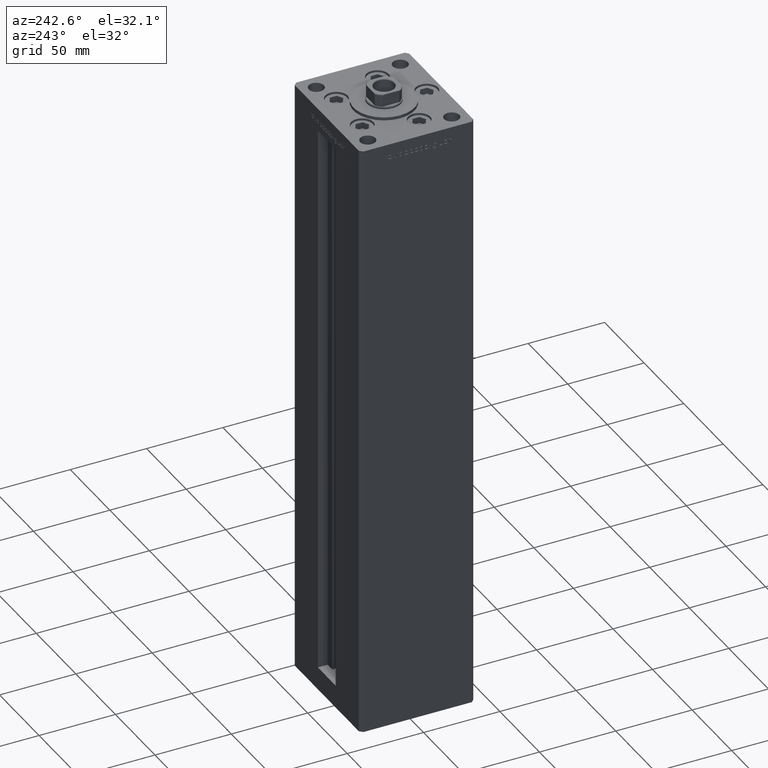
[diagram: clean part render]
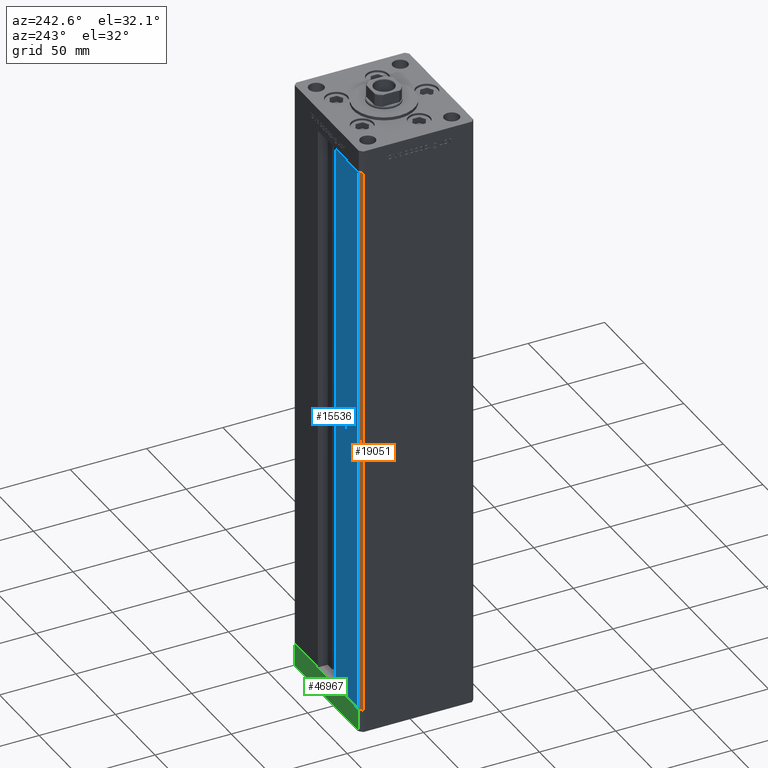
[diagram: same view with three faces highlighted in distinct colors, each labeled with its STEP entity id]
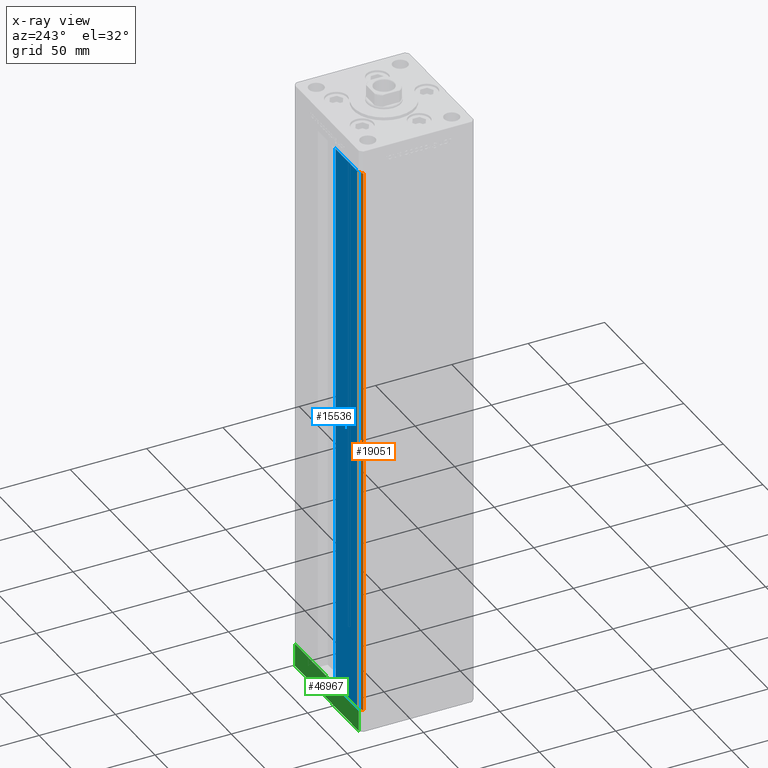
[diagram: x-ray of the same camera — body ghosted, the three highlighted faces saturated]
A machine part, auxiliary view with three faces highlighted in distinct colors.
The next image is the same camera in x-ray (body ghosted, the three faces saturated) — at least one of them is partly hidden behind the body in this view.
Their STEP definitions:

[orange] entity #19051 — the highlighted planar face has unit normal (0.7071, -0.7071, 0).
#3015 = DIRECTION ( 'NONE',  ( 0.7071067811865499042, 0.7071067811865451302, 0.000000000000000000 ) ) ;
#3270 = DIRECTION ( 'NONE',  ( 0.7071067811865451302, -0.7071067811865499042, 0.000000000000000000 ) ) ;
#3751 = EDGE_CURVE ( 'NONE', #9696, #46695, #30441, .T. ) ;
#4686 = EDGE_LOOP ( 'NONE', ( #36481, #6813, #23382, #20556 ) ) ;
#6538 = CARTESIAN_POINT ( 'NONE',  ( -42.50000000000000711, 35.50000000000001421, 0.000000000000000000 ) ) ;
#6813 = ORIENTED_EDGE ( 'NONE', *, *, #37438, .F. ) ;
#7782 = AXIS2_PLACEMENT_3D ( 'NONE', #43585, #3270, #3015 ) ;
#8089 = DIRECTION ( 'NONE',  ( -0.000000000000000000, -0.000000000000000000, -1.000000000000000000 ) ) ;
#9696 = VERTEX_POINT ( 'NONE', #22670 ) ;
#15595 = EDGE_CURVE ( 'NONE', #23734, #32940, #25820, .T. ) ;
#16400 = LINE ( 'NONE', #27689, #25405 ) ;
#18212 = DIRECTION ( 'NONE',  ( -0.7071067811865500152, -0.7071067811865451302, 0.000000000000000000 ) ) ;
#19051 = ADVANCED_FACE ( 'NONE', ( #27125 ), #50695, .F. ) ;
#20556 = ORIENTED_EDGE ( 'NONE', *, *, #33806, .T. ) ;
#22670 = CARTESIAN_POINT ( 'NONE',  ( -40.50000000000000000, 37.50000000000000711, 0.000000000000000000 ) ) ;
#23053 = CARTESIAN_POINT ( 'NONE',  ( -40.50000000000000000, 37.50000000000000711, 368.5000000000000000 ) ) ;
#23382 = ORIENTED_EDGE ( 'NONE', *, *, #15595, .F. ) ;
#23621 = CARTESIAN_POINT ( 'NONE',  ( -40.50000000000000000, 37.50000000000000711, 368.5000000000000000 ) ) ;
#23734 = VERTEX_POINT ( 'NONE', #23621 ) ;
#24083 = VECTOR ( 'NONE', #26509, 1000.000000000000114 ) ;
#25405 = VECTOR ( 'NONE', #48341, 1000.000000000000000 ) ;
#25820 = LINE ( 'NONE', #34731, #26097 ) ;
#26097 = VECTOR ( 'NONE', #18212, 1000.000000000000114 ) ;
#26509 = DIRECTION ( 'NONE',  ( -0.7071067811865500152, -0.7071067811865451302, 0.000000000000000000 ) ) ;
#27125 = FACE_OUTER_BOUND ( 'NONE', #4686, .T. ) ;
#27689 = CARTESIAN_POINT ( 'NONE',  ( -42.50000000000000711, 35.50000000000001421, 368.5000000000000000 ) ) ;
#30373 = VECTOR ( 'NONE', #8089, 1000.000000000000000 ) ;
#30441 = LINE ( 'NONE', #46395, #24083 ) ;
#32940 = VERTEX_POINT ( 'NONE', #38203 ) ;
#33806 = EDGE_CURVE ( 'NONE', #23734, #9696, #34874, .T. ) ;
#34731 = CARTESIAN_POINT ( 'NONE',  ( -40.50000000000000000, 37.50000000000000711, 368.5000000000000000 ) ) ;
#34874 = LINE ( 'NONE', #23053, #30373 ) ;
#36481 = ORIENTED_EDGE ( 'NONE', *, *, #3751, .T. ) ;
#37438 = EDGE_CURVE ( 'NONE', #32940, #46695, #16400, .T. ) ;
#38203 = CARTESIAN_POINT ( 'NONE',  ( -42.50000000000000711, 35.50000000000001421, 368.5000000000000000 ) ) ;
#43585 = CARTESIAN_POINT ( 'NONE',  ( -40.50000000000000000, 37.50000000000000711, 368.5000000000000000 ) ) ;
#46395 = CARTESIAN_POINT ( 'NONE',  ( -40.50000000000000000, 37.50000000000000711, 0.000000000000000000 ) ) ;
#46695 = VERTEX_POINT ( 'NONE', #6538 ) ;
#48341 = DIRECTION ( 'NONE',  ( -0.000000000000000000, -0.000000000000000000, -1.000000000000000000 ) ) ;
#50695 = PLANE ( 'NONE',  #7782 ) ;

[blue] entity #15536 — the highlighted planar face has unit normal (-0, -1, 0).
#8089 = DIRECTION ( 'NONE',  ( -0.000000000000000000, -0.000000000000000000, -1.000000000000000000 ) ) ;
#8780 = DIRECTION ( 'NONE',  ( -2.372271420139223331E-16, -1.000000000000000000, 0.000000000000000000 ) ) ;
#9460 = EDGE_LOOP ( 'NONE', ( #16716, #39993, #22182, #12212 ) ) ;
#9568 = CARTESIAN_POINT ( 'NONE',  ( -11.25000000000000000, 37.50000000000000000, 0.000000000000000000 ) ) ;
#9696 = VERTEX_POINT ( 'NONE', #22670 ) ;
#10795 = CARTESIAN_POINT ( 'NONE',  ( -11.25000000000000000, 37.50000000000000000, 0.000000000000000000 ) ) ;
#11838 = EDGE_CURVE ( 'NONE', #14102, #9696, #33281, .T. ) ;
#12212 = ORIENTED_EDGE ( 'NONE', *, *, #33806, .F. ) ;
#12715 = FACE_OUTER_BOUND ( 'NONE', #9460, .T. ) ;
#14102 = VERTEX_POINT ( 'NONE', #10795 ) ;
#15536 = ADVANCED_FACE ( 'NONE', ( #12715 ), #16649, .F. ) ;
#16649 = PLANE ( 'NONE',  #36100 ) ;
#16716 = ORIENTED_EDGE ( 'NONE', *, *, #20007, .T. ) ;
#20007 = EDGE_CURVE ( 'NONE', #23734, #27843, #47531, .T. ) ;
#21097 = LINE ( 'NONE', #9568, #40421 ) ;
#22182 = ORIENTED_EDGE ( 'NONE', *, *, #11838, .T. ) ;
#22670 = CARTESIAN_POINT ( 'NONE',  ( -40.50000000000000000, 37.50000000000000711, 0.000000000000000000 ) ) ;
#23053 = CARTESIAN_POINT ( 'NONE',  ( -40.50000000000000000, 37.50000000000000711, 368.5000000000000000 ) ) ;
#23621 = CARTESIAN_POINT ( 'NONE',  ( -40.50000000000000000, 37.50000000000000711, 368.5000000000000000 ) ) ;
#23734 = VERTEX_POINT ( 'NONE', #23621 ) ;
#25019 = DIRECTION ( 'NONE',  ( 1.000000000000000000, -2.372271420139223331E-16, 0.000000000000000000 ) ) ;
#27135 = DIRECTION ( 'NONE',  ( 1.000000000000000000, 0.000000000000000000, 0.000000000000000000 ) ) ;
#27843 = VERTEX_POINT ( 'NONE', #49486 ) ;
#30373 = VECTOR ( 'NONE', #8089, 1000.000000000000000 ) ;
#32911 = DIRECTION ( 'NONE',  ( -0.000000000000000000, -0.000000000000000000, 1.000000000000000000 ) ) ;
#33281 = LINE ( 'NONE', #49480, #39359 ) ;
#33806 = EDGE_CURVE ( 'NONE', #23734, #9696, #34874, .T. ) ;
#34874 = LINE ( 'NONE', #23053, #30373 ) ;
#36100 = AXIS2_PLACEMENT_3D ( 'NONE', #36308, #8780, #25019 ) ;
#36308 = CARTESIAN_POINT ( 'NONE',  ( -11.25000000000000000, 37.50000000000000000, 368.5000000000000000 ) ) ;
#36636 = EDGE_CURVE ( 'NONE', #14102, #27843, #21097, .T. ) ;
#39359 = VECTOR ( 'NONE', #48960, 1000.000000000000000 ) ;
#39677 = CARTESIAN_POINT ( 'NONE',  ( -11.25000000000000000, 37.50000000000000000, 368.5000000000000000 ) ) ;
#39993 = ORIENTED_EDGE ( 'NONE', *, *, #36636, .F. ) ;
#40421 = VECTOR ( 'NONE', #32911, 1000.000000000000000 ) ;
#43746 = VECTOR ( 'NONE', #27135, 1000.000000000000000 ) ;
#47531 = LINE ( 'NONE', #39677, #43746 ) ;
#48960 = DIRECTION ( 'NONE',  ( -1.000000000000000000, 2.372271420139223331E-16, 0.000000000000000000 ) ) ;
#49480 = CARTESIAN_POINT ( 'NONE',  ( -11.25000000000000000, 37.50000000000000000, 0.000000000000000000 ) ) ;
#49486 = CARTESIAN_POINT ( 'NONE',  ( -11.25000000000000000, 37.50000000000000000, 368.5000000000000000 ) ) ;

[green] entity #46967 — the highlighted planar face has unit normal (0, 1, 0).
#327 = VECTOR ( 'NONE', #9192, 1000.000000000000000 ) ;
#2859 = CARTESIAN_POINT ( 'NONE',  ( -40.50000000000000711, 37.49999999999997868, -15.00000000000000000 ) ) ;
#4214 = DIRECTION ( 'NONE',  ( -1.000000000000000000, -3.426614273534436165E-16, 0.000000000000000000 ) ) ;
#4740 = CARTESIAN_POINT ( 'NONE',  ( 40.49999999999991473, 37.50000000000000711, 0.000000000000000000 ) ) ;
#8404 = CARTESIAN_POINT ( 'NONE',  ( 40.49999999999991473, 37.50000000000000711, -15.00000000000000000 ) ) ;
#9192 = DIRECTION ( 'NONE',  ( -1.000000000000000000, -3.426614273534436165E-16, 0.000000000000000000 ) ) ;
#12967 = VERTEX_POINT ( 'NONE', #46529 ) ;
#13025 = VECTOR ( 'NONE', #4214, 1000.000000000000000 ) ;
#15247 = LINE ( 'NONE', #8404, #13025 ) ;
#15347 = ORIENTED_EDGE ( 'NONE', *, *, #38253, .F. ) ;
#16464 = ORIENTED_EDGE ( 'NONE', *, *, #27991, .T. ) ;
#17981 = CARTESIAN_POINT ( 'NONE',  ( 40.49999999999991473, 37.50000000000000711, 0.000000000000000000 ) ) ;
#18585 = LINE ( 'NONE', #2859, #42991 ) ;
#18870 = AXIS2_PLACEMENT_3D ( 'NONE', #22896, #50917, #51422 ) ;
#19901 = VERTEX_POINT ( 'NONE', #17981 ) ;
#21115 = EDGE_LOOP ( 'NONE', ( #15347, #41817, #36189, #16464 ) ) ;
#22896 = CARTESIAN_POINT ( 'NONE',  ( 40.49999999999991473, 37.50000000000000711, -15.00000000000000000 ) ) ;
#23654 = PLANE ( 'NONE',  #18870 ) ;
#25473 = VECTOR ( 'NONE', #38225, 1000.000000000000000 ) ;
#27991 = EDGE_CURVE ( 'NONE', #43932, #37492, #18585, .T. ) ;
#29511 = CARTESIAN_POINT ( 'NONE',  ( -40.50000000000000711, 37.49999999999997868, 0.000000000000000000 ) ) ;
#30041 = EDGE_CURVE ( 'NONE', #12967, #19901, #33783, .T. ) ;
#33783 = LINE ( 'NONE', #41333, #25473 ) ;
#35729 = FACE_OUTER_BOUND ( 'NONE', #21115, .T. ) ;
#36189 = ORIENTED_EDGE ( 'NONE', *, *, #48133, .T. ) ;
#37492 = VERTEX_POINT ( 'NONE', #29511 ) ;
#38187 = CARTESIAN_POINT ( 'NONE',  ( -40.50000000000000711, 37.49999999999997868, -15.00000000000000000 ) ) ;
#38225 = DIRECTION ( 'NONE',  ( 0.000000000000000000, 0.000000000000000000, 1.000000000000000000 ) ) ;
#38253 = EDGE_CURVE ( 'NONE', #19901, #37492, #40627, .T. ) ;
#40627 = LINE ( 'NONE', #4740, #327 ) ;
#41333 = CARTESIAN_POINT ( 'NONE',  ( 40.49999999999991473, 37.50000000000000711, -15.00000000000000000 ) ) ;
#41817 = ORIENTED_EDGE ( 'NONE', *, *, #30041, .F. ) ;
#42991 = VECTOR ( 'NONE', #50536, 1000.000000000000000 ) ;
#43932 = VERTEX_POINT ( 'NONE', #38187 ) ;
#46529 = CARTESIAN_POINT ( 'NONE',  ( 40.49999999999991473, 37.50000000000000711, -15.00000000000000000 ) ) ;
#46967 = ADVANCED_FACE ( 'NONE', ( #35729 ), #23654, .T. ) ;
#48133 = EDGE_CURVE ( 'NONE', #12967, #43932, #15247, .T. ) ;
#50536 = DIRECTION ( 'NONE',  ( 0.000000000000000000, 0.000000000000000000, 1.000000000000000000 ) ) ;
#50917 = DIRECTION ( 'NONE',  ( -3.426614273534436165E-16, 1.000000000000000000, 0.000000000000000000 ) ) ;
#51422 = DIRECTION ( 'NONE',  ( -1.000000000000000000, -3.426614273534436165E-16, 0.000000000000000000 ) ) ;